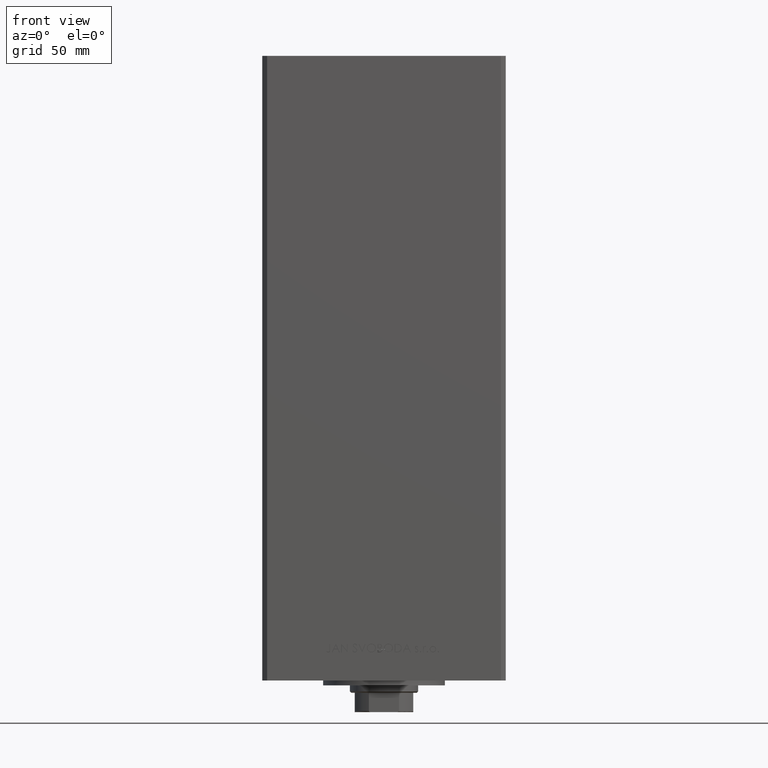
[diagram: clean part render]
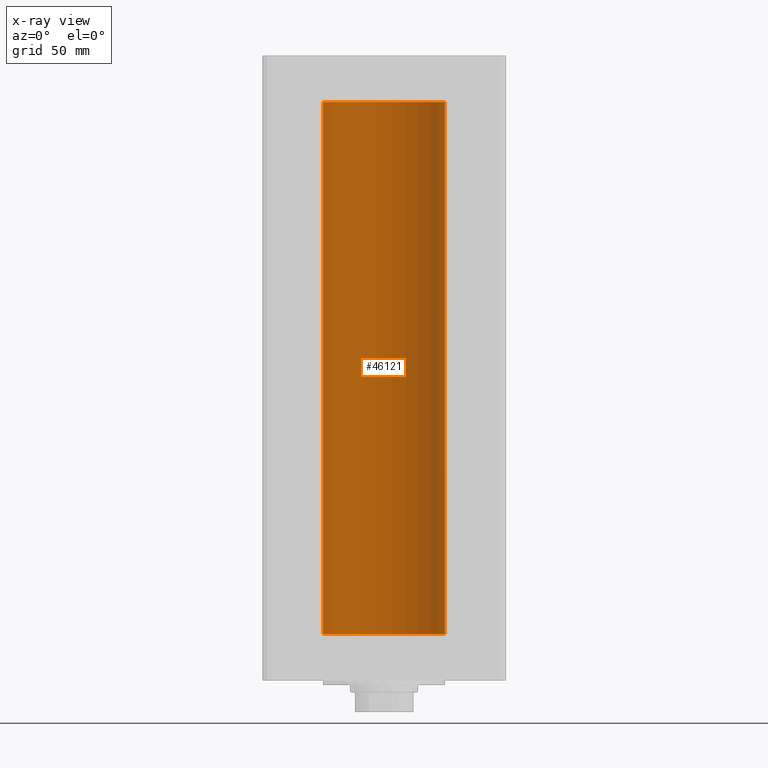
[diagram: x-ray — body ghosted, one internal face saturated and labeled with its STEP entity id]
A machine part, front view, then the same camera in x-ray: the body is ghosted and one INTERNAL B-rep face — a face not visible from any outside direction — is saturated and labeled: STEP entity #46121.
In plain terms, the highlighted cylindrical surface (partial cylindrical patch) has radius 25 mm, axis along (-0, -0, -1).
Its self-contained STEP definition (entity closure, byte-faithful):
#1202 = DIRECTION ( 'NONE',  ( -0.000000000000000000, 0.000000000000000000, 1.000000000000000000 ) ) ;
#8207 = VERTEX_POINT ( 'NONE', #48560 ) ;
#8707 = LINE ( 'NONE', #24018, #46027 ) ;
#11798 = ORIENTED_EDGE ( 'NONE', *, *, #17242, .T. ) ;
#12684 = DIRECTION ( 'NONE',  ( -0.000000000000000000, -0.000000000000000000, -1.000000000000000000 ) ) ;
#13372 = DIRECTION ( 'NONE',  ( -0.000000000000000000, 0.000000000000000000, 1.000000000000000000 ) ) ;
#13520 = ORIENTED_EDGE ( 'NONE', *, *, #31943, .T. ) ;
#13728 = DIRECTION ( 'NONE',  ( -0.000000000000000000, -0.000000000000000000, -1.000000000000000000 ) ) ;
#13980 = VERTEX_POINT ( 'NONE', #28102 ) ;
#15879 = EDGE_LOOP ( 'NONE', ( #32392, #13520, #11798, #43839 ) ) ;
#16350 = AXIS2_PLACEMENT_3D ( 'NONE', #17132, #13372, #32910 ) ;
#16518 = DIRECTION ( 'NONE',  ( 1.000000000000000000, 0.000000000000000000, 0.000000000000000000 ) ) ;
#17132 = CARTESIAN_POINT ( 'NONE',  ( 0.000000000000000000, 0.000000000000000000, 0.000000000000000000 ) ) ;
#17242 = EDGE_CURVE ( 'NONE', #33012, #8207, #8707, .T. ) ;
#19977 = LINE ( 'NONE', #20958, #39333 ) ;
#20268 = DIRECTION ( 'NONE',  ( -0.000000000000000000, -0.000000000000000000, -1.000000000000000000 ) ) ;
#20958 = CARTESIAN_POINT ( 'NONE',  ( 25.00000000000000000, 3.061616997868383043E-15, 218.5000000000000000 ) ) ;
#21010 = DIRECTION ( 'NONE',  ( -1.000000000000000000, 0.000000000000000000, 0.000000000000000000 ) ) ;
#24018 = CARTESIAN_POINT ( 'NONE',  ( -25.00000000000000000, 0.000000000000000000, 218.5000000000000000 ) ) ;
#24328 = AXIS2_PLACEMENT_3D ( 'NONE', #39525, #13728, #21010 ) ;
#24758 = FACE_OUTER_BOUND ( 'NONE', #15879, .T. ) ;
#26331 = CARTESIAN_POINT ( 'NONE',  ( -25.00000000000000000, 0.000000000000000000, 218.5000000000000000 ) ) ;
#28102 = CARTESIAN_POINT ( 'NONE',  ( 25.00000000000000000, 3.061616997868383043E-15, 218.5000000000000000 ) ) ;
#28514 = VERTEX_POINT ( 'NONE', #37965 ) ;
#31943 = EDGE_CURVE ( 'NONE', #13980, #33012, #35175, .T. ) ;
#32392 = ORIENTED_EDGE ( 'NONE', *, *, #42293, .F. ) ;
#32910 = DIRECTION ( 'NONE',  ( 1.000000000000000000, 0.000000000000000000, 0.000000000000000000 ) ) ;
#33012 = VERTEX_POINT ( 'NONE', #26331 ) ;
#35175 = CIRCLE ( 'NONE', #43129, 25.00000000000000000 ) ;
#37965 = CARTESIAN_POINT ( 'NONE',  ( 25.00000000000000000, 3.061616997868383043E-15, 0.000000000000000000 ) ) ;
#39333 = VECTOR ( 'NONE', #12684, 1000.000000000000000 ) ;
#39525 = CARTESIAN_POINT ( 'NONE',  ( 0.000000000000000000, 0.000000000000000000, 218.5000000000000000 ) ) ;
#40552 = CARTESIAN_POINT ( 'NONE',  ( 0.000000000000000000, 0.000000000000000000, 218.5000000000000000 ) ) ;
#42293 = EDGE_CURVE ( 'NONE', #13980, #28514, #19977, .T. ) ;
#43129 = AXIS2_PLACEMENT_3D ( 'NONE', #40552, #1202, #16518 ) ;
#43839 = ORIENTED_EDGE ( 'NONE', *, *, #47277, .F. ) ;
#44350 = CIRCLE ( 'NONE', #16350, 25.00000000000000000 ) ;
#46027 = VECTOR ( 'NONE', #20268, 1000.000000000000000 ) ;
#46121 = ADVANCED_FACE ( 'NONE', ( #24758 ), #48026, .F. ) ;
#47277 = EDGE_CURVE ( 'NONE', #28514, #8207, #44350, .T. ) ;
#48026 = CYLINDRICAL_SURFACE ( 'NONE', #24328, 25.00000000000000000 ) ;
#48560 = CARTESIAN_POINT ( 'NONE',  ( -25.00000000000000000, 0.000000000000000000, 0.000000000000000000 ) ) ;